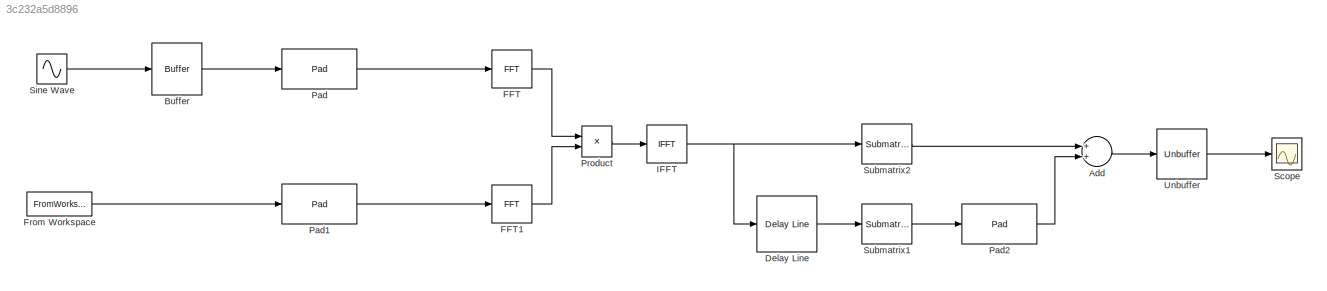
MODEL slx_3c232a5d8896
KIND model
CONFIG AbsTol = auto
CONFIG EnableMultiTasking = off
CONFIG FixedStep = auto
CONFIG MaxStep = auto
CONFIG MinStep = auto
CONFIG RelTol = 1e-3
CONFIG SampleTimeConstraint = Unconstrained
CONFIG Solver = VariableStepAuto
CONFIG SolverName = VariableStepAuto
CONFIG StartTime = 0.0
CONFIG StopTime = 10.0
BLOCK [Sum] Add
  InputSameDT = off
  OutDataTypeStr = Inherit: Inherit via internal rule
  Ports = [2, 1]
  SaturateOnIntegerOverflow = off
BLOCK [Buffer] Buffer
  N = 1548
  OutputFrames = off
BLOCK [Reference] Delay Line  REF=dspbuff3/Delay Line
  Ports = [1, 1]
  SourceBlock = dspbuff3/Delay Line
  SourceProductBaseCode = DS
  SourceProductName = DSP System Toolbox
  SourceType = Delay Line
  UserDataPersistent = on
BLOCK [Reference] FFT  REF=dspxfrm3/FFT
  Ports = [1, 1]
  SourceBlock = dspxfrm3/FFT
  SourceProductBaseCode = DS
  SourceProductName = DSP System Toolbox
  SourceType = FFT
BLOCK [Reference] FFT1  REF=dspxfrm3/FFT
  Ports = [1, 1]
  SourceBlock = dspxfrm3/FFT
  SourceProductBaseCode = DS
  SourceProductName = DSP System Toolbox
  SourceType = FFT
BLOCK [FromWorkspace] From Workspace
  SampleTime = 1548/8000
  VariableName = hAdd
  ZeroCross = on
BLOCK [Reference] IFFT  REF=dspxfrm3/IFFT
  Ports = [1, 1]
  SourceBlock = dspxfrm3/IFFT
  SourceProductBaseCode = DS
  SourceProductName = DSP System Toolbox
  SourceType = IFFT
BLOCK [Reference] Pad  REF=dspsigops/Pad
  Ports = [1, 1]
  SourceBlock = dspsigops/Pad
  SourceProductBaseCode = DS
  SourceProductName = DSP System Toolbox
  SourceType = Pad
BLOCK [Reference] Pad1  REF=dspsigops/Pad
  Ports = [1, 1]
  SourceBlock = dspsigops/Pad
  SourceProductBaseCode = DS
  SourceProductName = DSP System Toolbox
  SourceType = Pad
BLOCK [Reference] Pad2  REF=dspsigops/Pad
  Ports = [1, 1]
  SourceBlock = dspsigops/Pad
  SourceProductBaseCode = DS
  SourceProductName = DSP System Toolbox
  SourceType = Pad
BLOCK [Product] Product
  InputSameDT = off
  OutDataTypeStr = Inherit: Inherit via internal rule
  Ports = [2, 1]
  RndMeth = Floor
  SaturateOnIntegerOverflow = off
BLOCK [Scope] Scope
  Floating = off
  NumInputPorts = 1
  Ports = [1]
  ScopeSpecificationString = Simulink.scopes.TimeScopeBlockCfg('CurrentConfiguration', extmgr.ConfigurationSet(extmgr.Configuration('Core','General UI',true),extmgr.Configuration('Core','Source UI',true),extmgr.Configuration('Sources','WiredSimulink',true),extmgr.Configuration('Visuals','Time Domain',true,'SerializedDisplays',{struct('MinYLimReal','-1.35519','MaxYLimReal','1.3594','YLabelReal','','MinYLimMag','0.00000','MaxYL...<+1397ch>
BLOCK [Sin] Sine Wave
  Frequency = 100*2*pi
  Ports = [0, 1]
  SampleTime = 1/8000
BLOCK [Reference] Submatrix1  REF=dspmtrx3/Submatrix
  Ports = [1, 1]
  SourceBlock = dspmtrx3/Submatrix
  SourceProductBaseCode = DS
  SourceProductName = DSP System Toolbox
  SourceType = Submatrix
BLOCK [Reference] Submatrix2  REF=dspmtrx3/Submatrix
  Ports = [1, 1]
  SourceBlock = dspmtrx3/Submatrix
  SourceProductBaseCode = DS
  SourceProductName = DSP System Toolbox
  SourceType = Submatrix
BLOCK [Unbuffer] Unbuffer
  Ports = [1, 1]
LINE Add:1 -> Unbuffer:1
LINE Buffer:1 -> Pad:1
LINE Delay Line:1 -> Submatrix1:1
LINE FFT1:1 -> Product:2
LINE FFT:1 -> Product:1
LINE From Workspace:1 -> Pad1:1
NET IFFT:1 -> Delay Line:1, Submatrix2:1
LINE Pad1:1 -> FFT1:1
LINE Pad2:1 -> Add:2
LINE Pad:1 -> FFT:1
LINE Product:1 -> IFFT:1
LINE Sine Wave:1 -> Buffer:1
LINE Submatrix1:1 -> Pad2:1
LINE Submatrix2:1 -> Add:1
LINE Unbuffer:1 -> Scope:1
note: NET lines group one-source signal fan-out (src -> all destinations, sorted); 1:1 wires keep LINE
